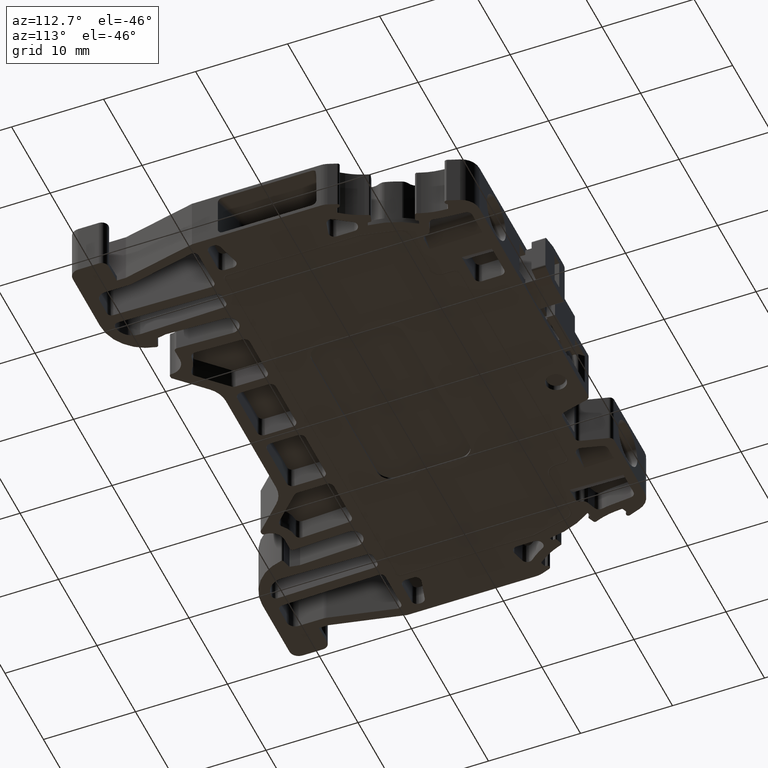
[diagram: clean part render]
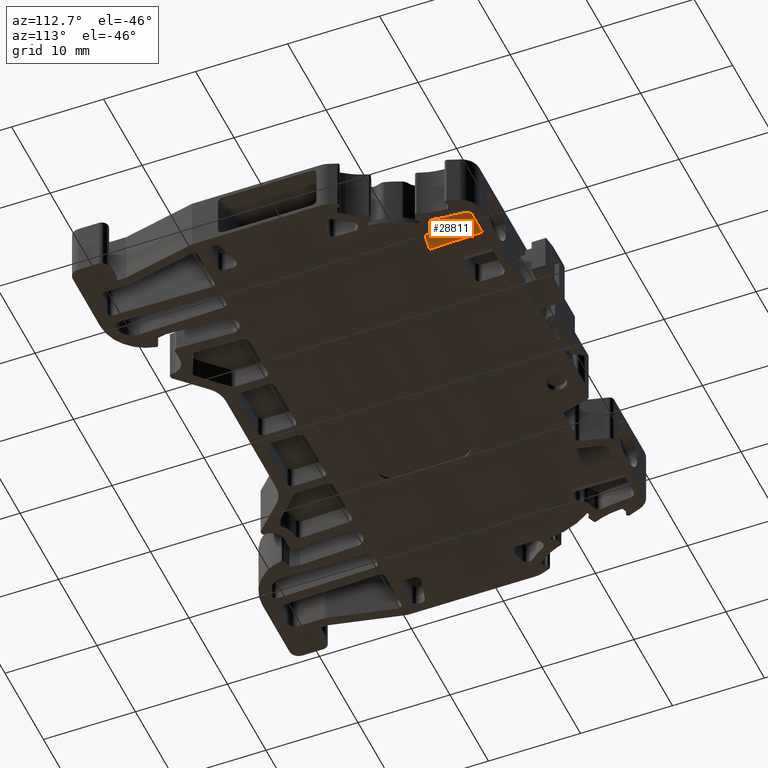
[diagram: same view with one face highlighted and labeled with its STEP entity id]
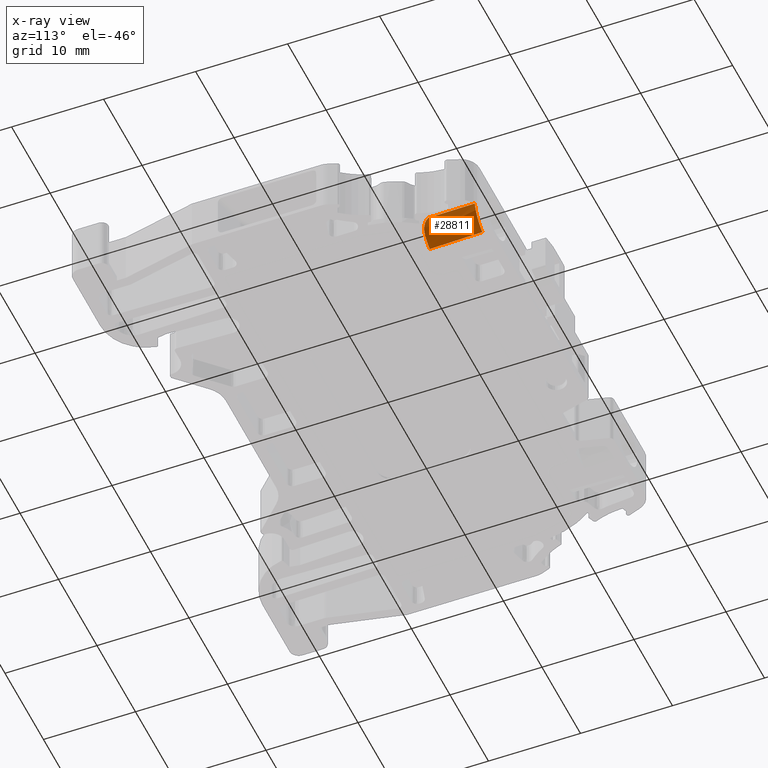
[diagram: x-ray of the same camera — body ghosted, the highlighted face saturated]
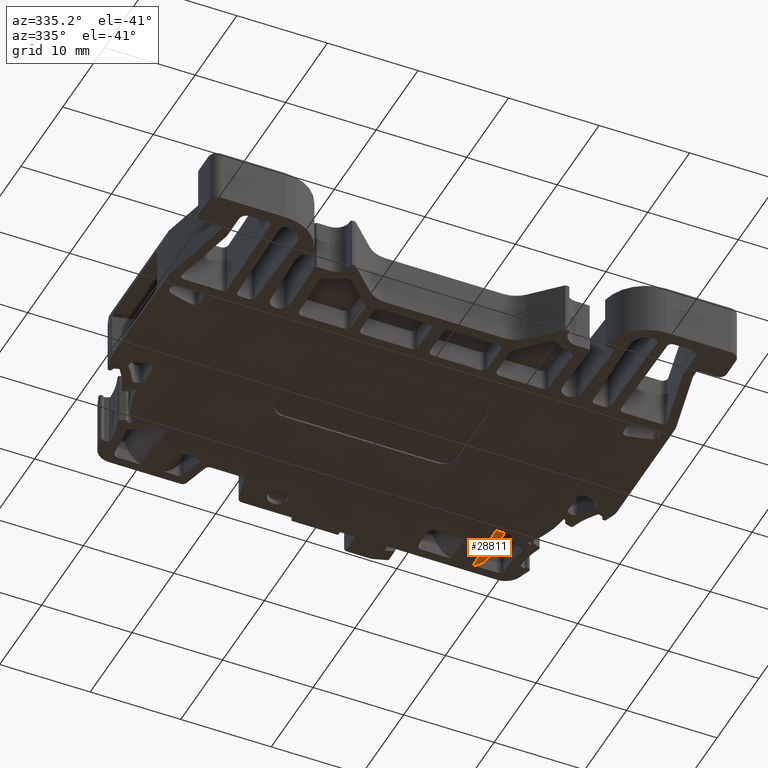
[diagram: same view with one face highlighted and labeled with its STEP entity id]
A machine part, auxiliary view. The second image highlights one B-rep face of the part: STEP entity #28811.
The next image is the same camera in x-ray: the body ghosted, the highlighted face saturated — about 0% of this face is hidden behind the body in this view.
A second angle (auxiliary view) of the same face is appended — the face is thin or edge-on in the first view.
In plain terms, the highlighted conical surface has half-angle 0.5 deg.
Its self-contained STEP definition (entity closure, byte-faithful):
#7063 = CONICAL_SURFACE ( 'NONE', #7069, 3.127638745998420100, 0.008727144349638673100 ) ;
#7069 = AXIS2_PLACEMENT_3D ( 'NONE', #31038, #31024, #31048 ) ;
#8395 = CARTESIAN_POINT ( 'NONE',  ( 1038.509809203782200, 961.7057359324120400, -4.816545540001839300 ) ) ;
#8396 = CARTESIAN_POINT ( 'NONE',  ( 1039.098941246860000, 962.3431889729799900, -3.500000000000000000 ) ) ;
#8402 = CARTESIAN_POINT ( 'NONE',  ( 1037.126266671819800, 961.6876969177120600, -5.850000000000000500 ) ) ;
#8407 = CARTESIAN_POINT ( 'NONE',  ( 1038.946993560897200, 967.4534349510839800, -4.572432496933243900 ) ) ;
#8409 = CARTESIAN_POINT ( 'NONE',  ( 1038.265306755885100, 967.4682900082215200, -5.423478150374019300 ) ) ;
#8410 = CARTESIAN_POINT ( 'NONE',  ( 1037.678933772268900, 961.6913488447775100, -5.640781238562891700 ) ) ;
#8416 = CARTESIAN_POINT ( 'NONE',  ( 1039.087257994674500, 962.3099823901535500, -3.561005371569350600 ) ) ;
#8420 = CARTESIAN_POINT ( 'NONE',  ( 1037.261785603356200, 967.4757349748009600, -5.850000000000000500 ) ) ;
#8423 = CARTESIAN_POINT ( 'NONE',  ( 1038.152377401078400, 961.6975217352974100, -5.287136577522794300 ) ) ;
#8427 = CARTESIAN_POINT ( 'NONE',  ( 1039.144133495390000, 967.4347155722190300, -3.500000000000000000 ) ) ;
#8434 = CARTESIAN_POINT ( 'NONE',  ( 1039.065407715836000, 962.2055805519889900, -3.652016094391655100 ) ) ;
#8445 = CARTESIAN_POINT ( 'NONE',  ( 1039.073968772228200, 962.2675095693786000, -3.618468852541796300 ) ) ;
#8567 = CARTESIAN_POINT ( 'NONE',  ( 1038.913747048858100, 961.8811957146067500, -4.118533211060285900 ) ) ;
#8569 = CARTESIAN_POINT ( 'NONE',  ( 1038.953712498288700, 961.9273403845348900, -4.016982053518011000 ) ) ;
#8570 = CARTESIAN_POINT ( 'NONE',  ( 1038.766654641278400, 961.7691740591852700, -4.424741466245071000 ) ) ;
#8571 = CARTESIAN_POINT ( 'NONE',  ( 1039.019621961249900, 962.0422706036479200, -3.818777166305250300 ) ) ;
#8572 = CARTESIAN_POINT ( 'NONE',  ( 1038.647957368354400, 961.7222296501638500, -4.623499251872893900 ) ) ;
#8579 = CARTESIAN_POINT ( 'NONE',  ( 1038.820188569421400, 961.8017501260535500, -4.322542297393613200 ) ) ;
#8582 = CARTESIAN_POINT ( 'NONE',  ( 1038.582472286880100, 961.7074058142832200, -4.720878071674098600 ) ) ;
#8598 = CARTESIAN_POINT ( 'NONE',  ( 1039.058148712354500, 962.1530703321858500, -3.680461129005851100 ) ) ;
#8604 = CARTESIAN_POINT ( 'NONE',  ( 1039.046316823374600, 962.1131143520556200, -3.726113765538585600 ) ) ;
#8608 = CARTESIAN_POINT ( 'NONE',  ( 1039.004236713620000, 962.0114776666052900, -3.868224746162825000 ) ) ;
#8610 = CARTESIAN_POINT ( 'NONE',  ( 1038.509809203782200, 961.7057359324120400, -4.816545540001839300 ) ) ;
#8611 = CARTESIAN_POINT ( 'NONE',  ( 1039.065407715836000, 962.2055805519889900, -3.652016094391655100 ) ) ;
#8632 = CARTESIAN_POINT ( 'NONE',  ( 1039.144133495390000, 967.4347155722190300, -3.500000000000000000 ) ) ;
#8633 = CARTESIAN_POINT ( 'NONE',  ( 1039.114008998900500, 964.0403644734910800, -3.500000000000000000 ) ) ;
#8635 = CARTESIAN_POINT ( 'NONE',  ( 1039.098941246860000, 962.3431889729799900, -3.500000000000000000 ) ) ;
#8652 = CARTESIAN_POINT ( 'NONE',  ( 1039.129073028687300, 965.7375400070429800, -3.500000000000000000 ) ) ;
#8664 = CARTESIAN_POINT ( 'NONE',  ( 1037.218731811346700, 965.5463355499551900, -5.850000000000000500 ) ) ;
#8668 = CARTESIAN_POINT ( 'NONE',  ( 1037.261785603356200, 967.4757349748009600, -5.850000000000000500 ) ) ;
#8671 = CARTESIAN_POINT ( 'NONE',  ( 1037.173818013988500, 963.6169829993065200, -5.850000000000000500 ) ) ;
#8688 = CARTESIAN_POINT ( 'NONE',  ( 1037.126266671819800, 961.6876969177120600, -5.850000000000000500 ) ) ;
#10267 = EDGE_LOOP ( 'NONE', ( #16432, #16469, #16424, #16448, #16528, #16419 ) ) ;
#16419 = ORIENTED_EDGE ( 'NONE', *, *, #20531, .F. ) ;
#16424 = ORIENTED_EDGE ( 'NONE', *, *, #20580, .T. ) ;
#16432 = ORIENTED_EDGE ( 'NONE', *, *, #20600, .T. ) ;
#16448 = ORIENTED_EDGE ( 'NONE', *, *, #20525, .T. ) ;
#16469 = ORIENTED_EDGE ( 'NONE', *, *, #20539, .T. ) ;
#16528 = ORIENTED_EDGE ( 'NONE', *, *, #20613, .F. ) ;
#17859 = VERTEX_POINT ( 'NONE', #21191 ) ;
#17901 = VERTEX_POINT ( 'NONE', #21223 ) ;
#17904 = VERTEX_POINT ( 'NONE', #21250 ) ;
#17916 = VERTEX_POINT ( 'NONE', #21262 ) ;
#17938 = VERTEX_POINT ( 'NONE', #21233 ) ;
#17955 = VERTEX_POINT ( 'NONE', #21302 ) ;
#20525 = EDGE_CURVE ( 'NONE', #17859, #17916, #20707, .T. ) ;
#20531 = EDGE_CURVE ( 'NONE', #17955, #17904, #20682, .T. ) ;
#20539 = EDGE_CURVE ( 'NONE', #17938, #17901, #41889, .T. ) ;
#20580 = EDGE_CURVE ( 'NONE', #17901, #17859, #41911, .T. ) ;
#20600 = EDGE_CURVE ( 'NONE', #17955, #17938, #41919, .T. ) ;
#20613 = EDGE_CURVE ( 'NONE', #17904, #17916, #41934, .T. ) ;
#20682 =( BOUNDED_CURVE ( )  B_SPLINE_CURVE ( 3, ( #8427, #8407, #8409, #8420 ),
 .UNSPECIFIED., .F., .F. ) 
 B_SPLINE_CURVE_WITH_KNOTS ( ( 4, 4 ),
 ( 4.894184421645036300, 5.881293259500411700 ),
 .UNSPECIFIED. ) 
 CURVE ( )  GEOMETRIC_REPRESENTATION_ITEM ( )  RATIONAL_B_SPLINE_CURVE ( ( 1.000000000000000000, 0.9204363246157859500, 0.9204363246157859500, 1.000000000000000000 ) ) 
 REPRESENTATION_ITEM ( '' )  );
#20707 =( BOUNDED_CURVE ( )  B_SPLINE_CURVE ( 3, ( #8395, #8423, #8410, #8402 ),
 .UNSPECIFIED., .F., .F. ) 
 B_SPLINE_CURVE_WITH_KNOTS ( ( 4, 4 ),
 ( 2.220373903430745700, 2.779702803039455300 ),
 .UNSPECIFIED. ) 
 CURVE ( )  GEOMETRIC_REPRESENTATION_ITEM ( )  RATIONAL_B_SPLINE_CURVE ( ( 1.000000000000000000, 0.9740987435976455900, 0.9740987435976455900, 1.000000000000000000 ) ) 
 REPRESENTATION_ITEM ( '' )  );
#21191 = CARTESIAN_POINT ( 'NONE',  ( 1038.509809203782200, 961.7057359324120400, -4.816545540001839300 ) ) ;
#21223 = CARTESIAN_POINT ( 'NONE',  ( 1039.065407715836000, 962.2055805519889900, -3.652016094391655100 ) ) ;
#21233 = CARTESIAN_POINT ( 'NONE',  ( 1039.098941246860000, 962.3431889729799900, -3.500000000000000000 ) ) ;
#21250 = CARTESIAN_POINT ( 'NONE',  ( 1037.261785603356200, 967.4757349748009600, -5.850000000000000500 ) ) ;
#21262 = CARTESIAN_POINT ( 'NONE',  ( 1037.126266671819800, 961.6876969177120600, -5.850000000000000500 ) ) ;
#21302 = CARTESIAN_POINT ( 'NONE',  ( 1039.144133495390000, 967.4347155722190300, -3.500000000000000000 ) ) ;
#28811 = ADVANCED_FACE ( 'NONE', ( #31066 ), #7063, .T. ) ;
#31024 = DIRECTION ( 'NONE',  ( 0.0000000000000000000, 1.000000000000000000, 0.0000000000000000000 ) ) ;
#31038 = CARTESIAN_POINT ( 'NONE',  ( 1036.018792461973800, 961.6876969177120600, -2.925000000000000300 ) ) ;
#31048 = DIRECTION ( 'NONE',  ( 0.0000000000000000000, 0.0000000000000000000, 1.000000000000000000 ) ) ;
#31066 = FACE_OUTER_BOUND ( 'NONE', #10267, .T. ) ;
#41889 = B_SPLINE_CURVE_WITH_KNOTS ( 'NONE', 3,
 ( #8396, #8416, #8445, #8434 ),
 .UNSPECIFIED., .F., .F.,
 ( 4, 4 ),
 ( 0.0000000000000000000, 0.0002098321239813957500 ),
 .UNSPECIFIED. ) ;
#41911 = B_SPLINE_CURVE_WITH_KNOTS ( 'NONE', 3,
 ( #8611, #8598, #8604, #8571, #8608, #8569, #8567, #8579, #8570, #8572, #8582, #8610 ),
 .UNSPECIFIED., .F., .F.,
 ( 4, 2, 2, 2, 2, 4 ),
 ( 0.003846830535407610000, 0.004025194132190617100, 0.004203557728973624600, 0.004560284922539606700, 0.004917012116105589700, 0.005273739309671572600 ),
 .UNSPECIFIED. ) ;
#41919 = B_SPLINE_CURVE_WITH_KNOTS ( 'NONE', 3,
 ( #8632, #8652, #8633, #8635 ),
 .UNSPECIFIED., .F., .F.,
 ( 4, 4 ),
 ( 4.102101758198521000E-005, 0.005132748175441757800 ),
 .UNSPECIFIED. ) ;
#41934 = B_SPLINE_CURVE_WITH_KNOTS ( 'NONE', 3,
 ( #8668, #8664, #8671, #8688 ),
 .UNSPECIFIED., .F., .F.,
 ( 4, 4 ),
 ( 0.008522526267539017700, 0.01431217558684019100 ),
 .UNSPECIFIED. ) ;